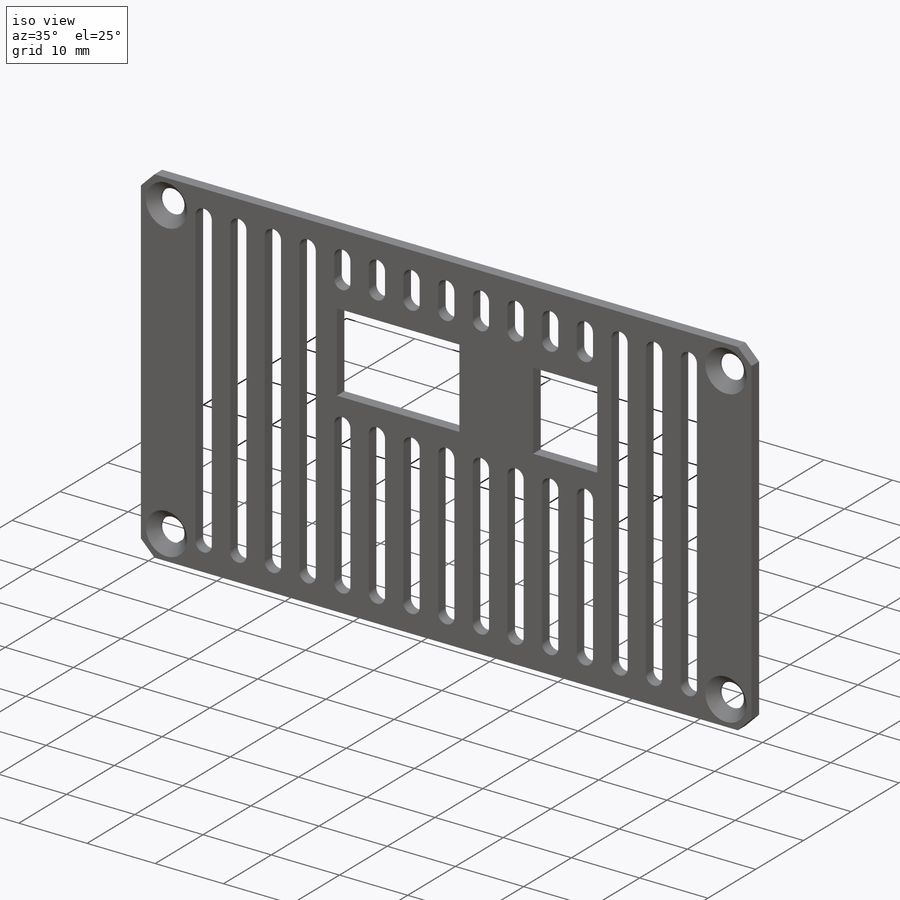
[diagram: iso view]
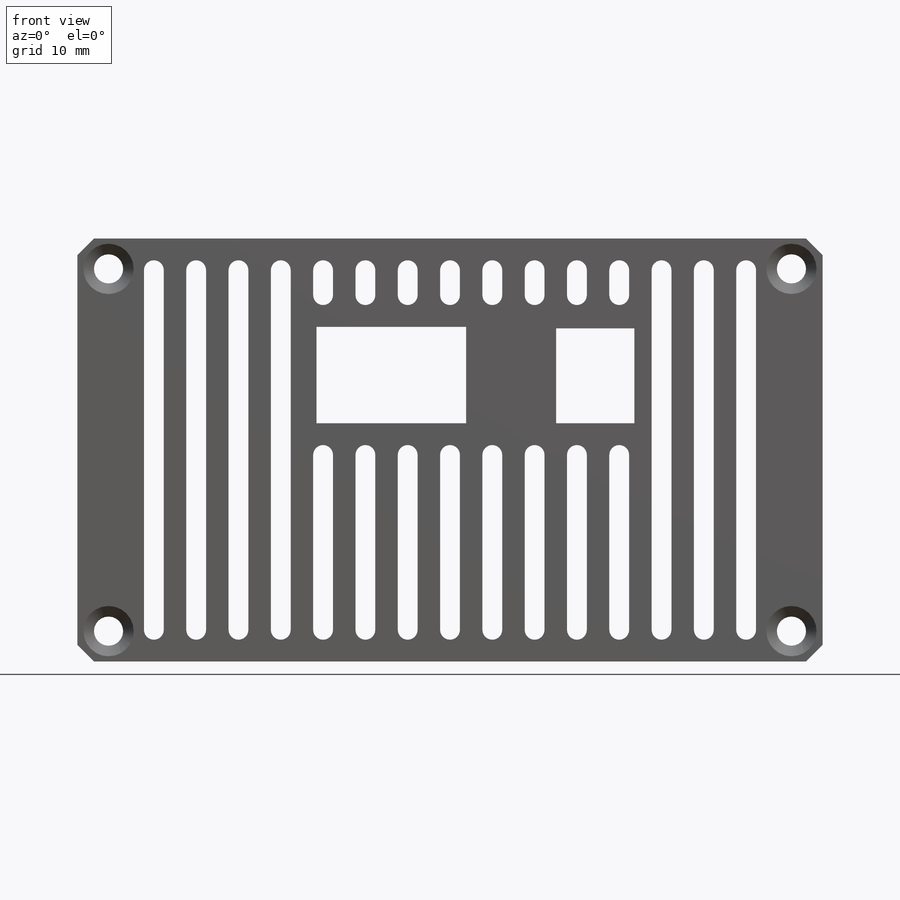
[diagram: front view]
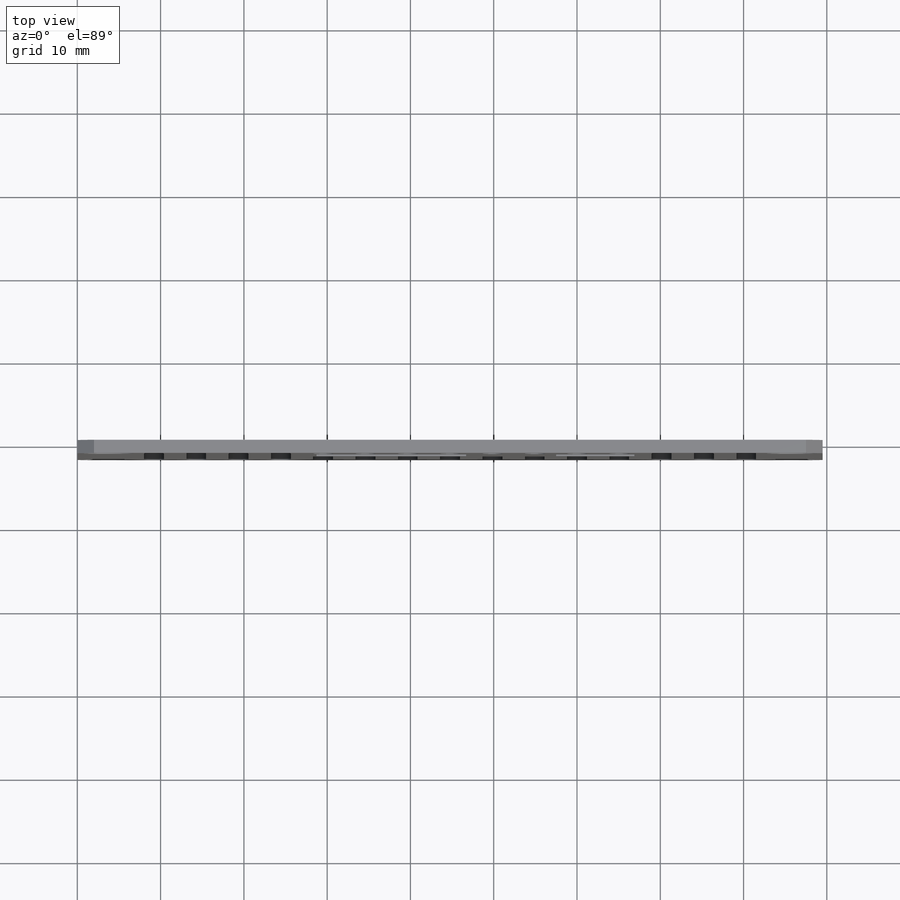
[diagram: top view]
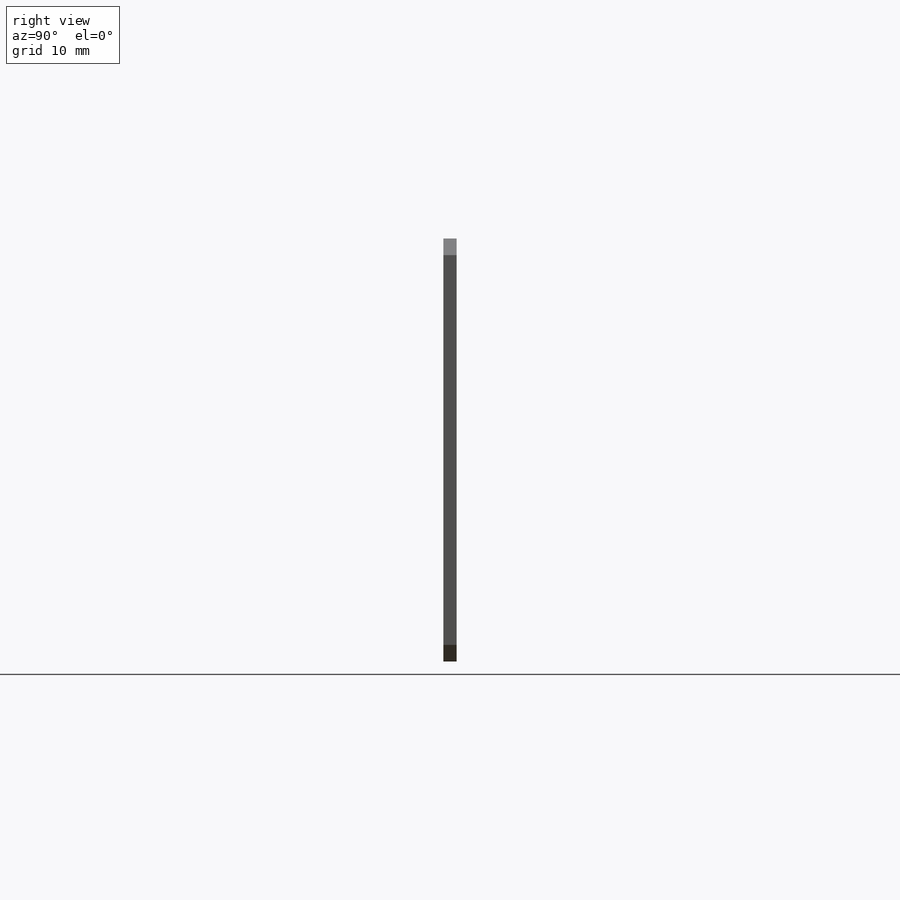
[diagram: right view]
SOLIDWORKS PART (.sldprt)
format: sldprt  version: not decoded by parser v0  size: 466,432 bytes
history: native  units: mm
features: sketch x4, cut_extrude x3, chamfer x2, material x1, extrude x1 (+13 scaffold rows collapsed)
feature tree (24):
  scaffold x13  (default folders/planes/origin — collapsed)
  material  "Material <not specified>"
  sketch  "Sketch1"  dims[D1=89.5mm D2=50.8mm]
  extrude  "Boss-Extrude1"  Depth=1.5875mm
  chamfer  "Chamfer1"  Distance=2mm Angle=45deg
  sketch  "Sketch2"  dims[c1.D11=0.75mm c1.D12=0.75mm c1.D1=0.2mm c1.D2=0.2mm c1.D3=0.2mm c1.D4=0.2mm c1.D5=0.2mm c1.D6=0.2mm c1.D7=0.2mm c1.D8=0.2mm c1.D9=~0.198438mm c1.D10=~0.198438mm c2.D9=2.85mm c2.D10=3.95mm c2.D12=~0.853553mm c3.D12=135.0deg c3.D13=~2.596447mm c3.D9=10.0mm]
  cut_extrude  "Cut-Extrude1"  [1 undecoded]
  sketch  "Sketch3"  dims[D1=3.5mm D2=82.0mm D3=43.5mm]
  cut_extrude  "Cut-Extrude2"  [1 undecoded]
  chamfer  "Chamfer2"  Distance=1.27mm Angle=45deg
  sketch  "Sketch4"  dims[c1.D1=~2.38125mm c1.D2=6.35mm c1.D3=19.05mm c2.D2=3.81mm c2.D4=~2.440781mm c2.D3=3.81mm c3.D4=5.08mm c3.D5=5.08mm c3.D7=5.08mm c3.D8=5.08mm c3.D6=3.0]
  cut_extrude  "Cut-Extrude3"  [1 undecoded]
decode coverage: 7 of 10 modeling features carry decoded parameters
note: ~ marks probable driven/reference dimensions
note: 3 parameter values undecoded
summary: no parameter record found for 3 features
note: suppression state not decoded; provenance and decode notes live in map.json
